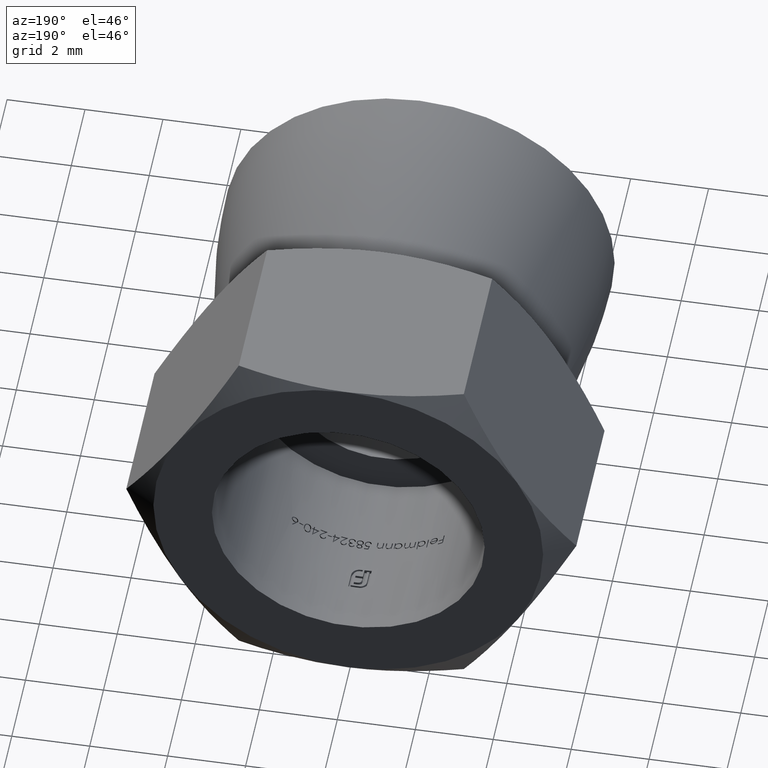
[diagram: clean part render]
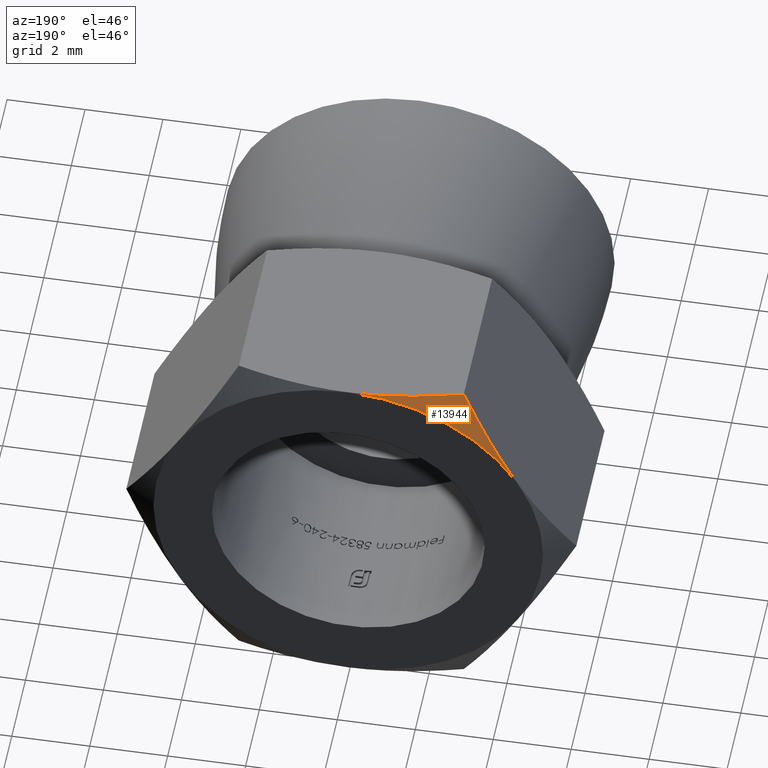
[diagram: same view with one face highlighted and labeled with its STEP entity id]
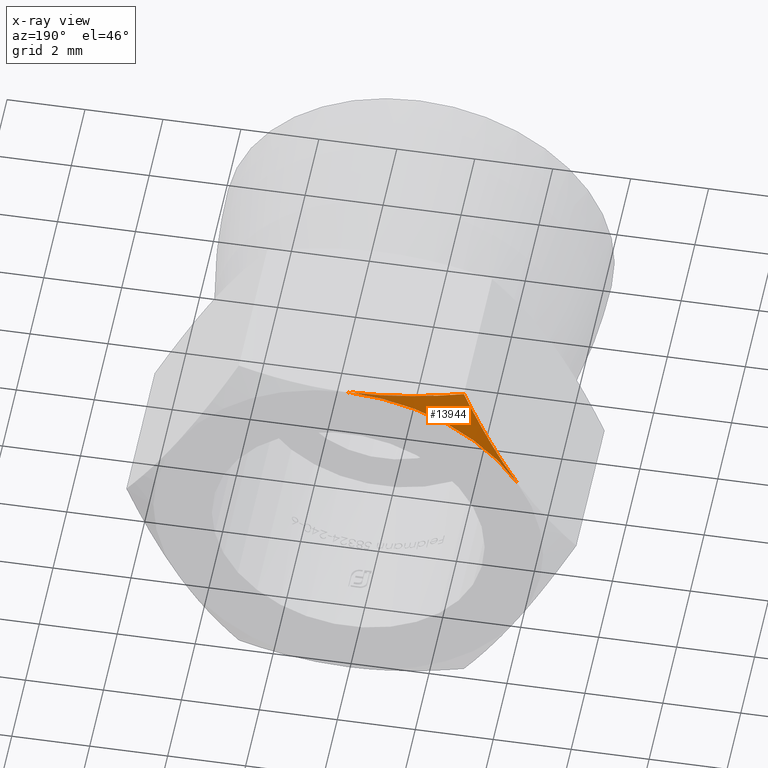
[diagram: x-ray of the same camera — body ghosted, the highlighted face saturated]
A machine part, auxiliary view. The second image highlights one B-rep face of the part: STEP entity #13944.
The next image is the same camera in x-ray: the body ghosted, the highlighted face saturated — about 0% of this face is hidden behind the body in this view.
In plain terms, the highlighted conical surface has half-angle 60 deg.
Its self-contained STEP definition (entity closure, byte-faithful):
#990 = B_SPLINE_CURVE_WITH_KNOTS ( 'NONE', 3,
 ( #15462, #3960, #3181, #9304, #15681, #9482, #1900, #4220 ),
 .UNSPECIFIED., .F., .F.,
 ( 4, 2, 2, 4 ),
 ( 0.002921158011986716829, 0.003648658599403070083, 0.004376159186819422904, 0.005831160361652128546 ),
 .UNSPECIFIED. ) ;
#1900 = CARTESIAN_POINT ( 'NONE',  ( -3.122278952918450479, 10.09354512833380824, 4.592054218142290090 ) ) ;
#1921 = ORIENTED_EDGE ( 'NONE', *, *, #5831, .T. ) ;
#2392 = CARTESIAN_POINT ( 'NONE',  ( 6.363451432349548478E-16, 10.40414518843273228, 0.000000000000000000 ) ) ;
#3181 = CARTESIAN_POINT ( 'NONE',  ( -4.084588180558405668, 10.39358962790934093, 2.925285743277522776 ) ) ;
#3239 = CARTESIAN_POINT ( 'NONE',  ( -1.148121561336246678E-16, 10.40414518843273228, 4.999999999999998224 ) ) ;
#3453 = DIRECTION ( 'NONE',  ( -0.000000000000000000, -1.000000000000000000, -0.000000000000000000 ) ) ;
#3825 = AXIS2_PLACEMENT_3D ( 'NONE', #4727, #3453, #14620 ) ;
#3956 = FACE_OUTER_BOUND ( 'NONE', #13491, .T. ) ;
#3960 = CARTESIAN_POINT ( 'NONE',  ( -4.207632145829750314, 10.40414518843273584, 2.712167343862818214 ) ) ;
#4060 = ORIENTED_EDGE ( 'NONE', *, *, #15101, .T. ) ;
#4220 = CARTESIAN_POINT ( 'NONE',  ( -2.886751345948127767, 9.957563201047536339, 4.999999999999997335 ) ) ;
#4448 = CARTESIAN_POINT ( 'NONE',  ( -2.417244626924480499, 10.09309811635487719, 4.999999999999998224 ) ) ;
#4617 = CARTESIAN_POINT ( 'NONE',  ( -1.936377641173854691, 10.20677601518782041, 4.999999999999998224 ) ) ;
#4727 = CARTESIAN_POINT ( 'NONE',  ( 0.000000000000000000, 10.40414518843273228, 0.000000000000000000 ) ) ;
#5034 = VERTEX_POINT ( 'NONE', #6375 ) ;
#5773 = AXIS2_PLACEMENT_3D ( 'NONE', #2392, #12412, #15127 ) ;
#5831 = EDGE_CURVE ( 'NONE', #5034, #9089, #990, .T. ) ;
#6177 = EDGE_CURVE ( 'NONE', #5034, #10897, #9507, .T. ) ;
#6375 = CARTESIAN_POINT ( 'NONE',  ( -4.330127018922190985, 10.40414518843273228, 2.500000000000000444 ) ) ;
#7351 = CARTESIAN_POINT ( 'NONE',  ( -1.148121561336246678E-16, 10.40414518843273228, 4.999999999999998224 ) ) ;
#8045 = B_SPLINE_CURVE_WITH_KNOTS ( 'NONE', 3,
 ( #10816, #4448, #4617, #10923, #15914, #3239 ),
 .UNSPECIFIED., .F., .F.,
 ( 4, 2, 4 ),
 ( 0.005150343764683536045, 0.006610526168996362292, 0.008070708573309187672 ),
 .UNSPECIFIED. ) ;
#8359 = ORIENTED_EDGE ( 'NONE', *, *, #6177, .F. ) ;
#9089 = VERTEX_POINT ( 'NONE', #14305 ) ;
#9304 = CARTESIAN_POINT ( 'NONE',  ( -3.841181488860380799, 10.35274090134890379, 3.346878500200754392 ) ) ;
#9482 = CARTESIAN_POINT ( 'NONE',  ( -3.359771601077110592, 10.20580086606057613, 4.180704885107411783 ) ) ;
#9507 = CIRCLE ( 'NONE', #5773, 4.999999999999998224 ) ;
#10816 = CARTESIAN_POINT ( 'NONE',  ( -2.886751345948127767, 9.957563201047536339, 4.999999999999997335 ) ) ;
#10897 = VERTEX_POINT ( 'NONE', #7351 ) ;
#10923 = CARTESIAN_POINT ( 'NONE',  ( -0.9724665692850861243, 10.36221474958064093, 4.999999999999996447 ) ) ;
#12412 = DIRECTION ( 'NONE',  ( 7.347880794884106671E-17, 1.000000000000000000, -0.000000000000000000 ) ) ;
#13491 = EDGE_LOOP ( 'NONE', ( #1921, #4060, #8359 ) ) ;
#13944 = ADVANCED_FACE ( 'NONE', ( #3956 ), #16247, .T. ) ;
#14305 = CARTESIAN_POINT ( 'NONE',  ( -2.886751345948127767, 9.957563201047536339, 4.999999999999997335 ) ) ;
#14620 = DIRECTION ( 'NONE',  ( 0.000000000000000000, 0.000000000000000000, -1.000000000000000000 ) ) ;
#15101 = EDGE_CURVE ( 'NONE', #9089, #10897, #8045, .T. ) ;
#15127 = DIRECTION ( 'NONE',  ( 1.000000000000000000, 0.000000000000000000, -8.881784197001252323E-16 ) ) ;
#15462 = CARTESIAN_POINT ( 'NONE',  ( -4.330127018922190985, 10.40414518843273228, 2.500000000000000444 ) ) ;
#15681 = CARTESIAN_POINT ( 'NONE',  ( -3.720292241887091400, 10.32248699130896163, 3.556264818047234932 ) ) ;
#15914 = CARTESIAN_POINT ( 'NONE',  ( -0.4878135028931862571, 10.40414518843273406, 4.999999999999998224 ) ) ;
#16247 = CONICAL_SURFACE ( 'NONE', #3825, 4.999999999999998224, 1.047197551196605847 ) ;